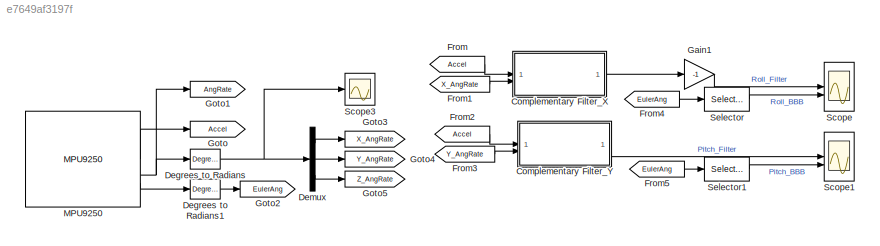
MODEL slx_e7649af3197f
KIND model
CONFIG AbsTol = auto
CONFIG EnableMultiTasking = on
CONFIG FixedStep = auto
CONFIG InitFcn = %Define the sampling time\nTs=0.003; %0.001\nTs2 = Ts;\nTs_IMU = Ts;\n\n%% Low pass filter\n%Filter coefficient (for the averaging)\n%The averaging window is around 5*tau\nT=0.1; %0.1\n\n%The constant alpha is used just to avoid more calculations\nalpha = (T/Ts)/(1+T/Ts);
CONFIG MaxStep = auto
CONFIG MinStep = auto
CONFIG RelTol = 1e-3
CONFIG SampleTimeConstraint = Unconstrained
CONFIG SolverName = FixedStepAuto
CONFIG StartTime = 0.0
CONFIG StopTime = inf
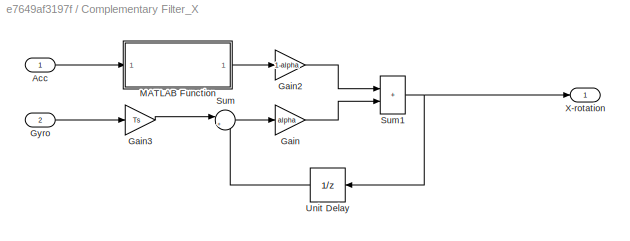
BLOCK [SubSystem] Complementary Filter_X
BLOCK [Inport] Complementary Filter_X/Acc
BLOCK [Gain] Complementary Filter_X/Gain
  Gain = alpha
BLOCK [Gain] Complementary Filter_X/Gain2
  Gain = 1-alpha
BLOCK [Gain] Complementary Filter_X/Gain3
  Gain = Ts
BLOCK [Inport] Complementary Filter_X/Gyro
  Port = 2
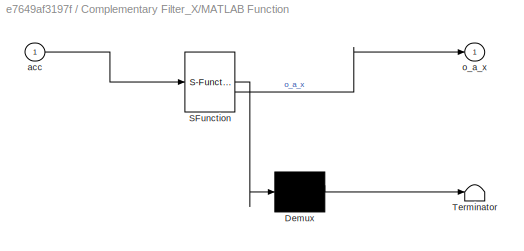
BLOCK [SubSystem] Complementary Filter_X/MATLAB Function
  ErrorFcn = Stateflow.Translate.translate
  PermitHierarchicalResolution = ExplicitOnly
  SFBlockType = MATLAB Function
  TreatAsAtomicUnit = on
BLOCK [Demux] Complementary Filter_X/MATLAB Function/ Demux 
  Outputs = 1
BLOCK [S-Function] Complementary Filter_X/MATLAB Function/ SFunction 
  EnableBusSupport = on
  FunctionName = sf_sfun
  PortCounts = [1 2]
  SFcnIsStateOwnerBlock = off
  SFunctionDeploymentMode = off
  Tag = Stateflow S-Function 2
BLOCK [Terminator] Complementary Filter_X/MATLAB Function/ Terminator 
BLOCK [Inport] Complementary Filter_X/MATLAB Function/acc
BLOCK [Outport] Complementary Filter_X/MATLAB Function/o_a_x
BLOCK [Sum] Complementary Filter_X/Sum
  Inputs = |++
BLOCK [Sum] Complementary Filter_X/Sum1
  IconShape = rectangular
BLOCK [UnitDelay] Complementary Filter_X/Unit Delay
  HasFrameUpgradeWarning = on
  NameLocation = top
  SampleTime = -1
BLOCK [Outport] Complementary Filter_X/X-rotation
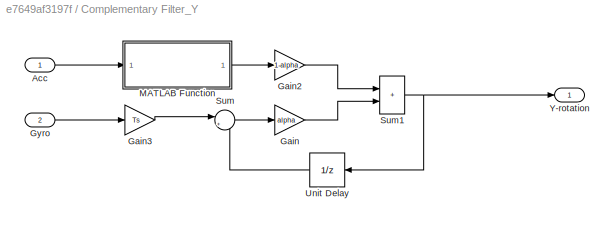
BLOCK [SubSystem] Complementary Filter_Y
BLOCK [Inport] Complementary Filter_Y/Acc
BLOCK [Gain] Complementary Filter_Y/Gain
  Gain = alpha
BLOCK [Gain] Complementary Filter_Y/Gain2
  Gain = 1-alpha
BLOCK [Gain] Complementary Filter_Y/Gain3
  Gain = Ts
BLOCK [Inport] Complementary Filter_Y/Gyro
  Port = 2
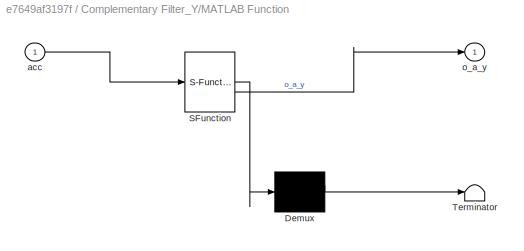
BLOCK [SubSystem] Complementary Filter_Y/MATLAB Function
  ErrorFcn = Stateflow.Translate.translate
  PermitHierarchicalResolution = ExplicitOnly
  SFBlockType = MATLAB Function
  TreatAsAtomicUnit = on
BLOCK [Demux] Complementary Filter_Y/MATLAB Function/ Demux 
  Outputs = 1
BLOCK [S-Function] Complementary Filter_Y/MATLAB Function/ SFunction 
  EnableBusSupport = on
  FunctionName = sf_sfun
  PortCounts = [1 2]
  SFcnIsStateOwnerBlock = off
  SFunctionDeploymentMode = off
  Tag = Stateflow S-Function 3
BLOCK [Terminator] Complementary Filter_Y/MATLAB Function/ Terminator 
BLOCK [Inport] Complementary Filter_Y/MATLAB Function/acc
BLOCK [Outport] Complementary Filter_Y/MATLAB Function/o_a_y
BLOCK [Sum] Complementary Filter_Y/Sum
  Inputs = |++
BLOCK [Sum] Complementary Filter_Y/Sum1
  IconShape = rectangular
BLOCK [UnitDelay] Complementary Filter_Y/Unit Delay
  HasFrameUpgradeWarning = on
  NameLocation = top
  SampleTime = -1
BLOCK [Outport] Complementary Filter_Y/Y-rotation
BLOCK [Reference] Degrees to Radians  REF=simulink_extras/Transformations/Degrees to
Radians
  SourceBlock = simulink_extras/Transformations/Degrees to\nRadians
  SourceType = DegreesToRadians
BLOCK [Reference] Degrees to Radians1  REF=simulink_extras/Transformations/Degrees to
Radians
  SourceBlock = simulink_extras/Transformations/Degrees to\nRadians
  SourceType = DegreesToRadians
BLOCK [Demux] Demux
  Outputs = 3
BLOCK [From] From
  GotoTag = Accel
  TagVisibility = global
BLOCK [From] From1
  GotoTag = X_AngRate
  TagVisibility = global
BLOCK [From] From2
  GotoTag = Accel
  TagVisibility = global
BLOCK [From] From3
  GotoTag = Y_AngRate
  TagVisibility = global
BLOCK [From] From4
  GotoTag = EulerAng
  TagVisibility = global
BLOCK [From] From5
  GotoTag = EulerAng
  TagVisibility = global
BLOCK [Gain] Gain1
  Gain = -1
BLOCK [Goto] Goto
  GotoTag = Accel
  TagVisibility = global
BLOCK [Goto] Goto1
  GotoTag = AngRate
BLOCK [Goto] Goto2
  GotoTag = EulerAng
  TagVisibility = global
BLOCK [Goto] Goto3
  GotoTag = X_AngRate
  TagVisibility = global
BLOCK [Goto] Goto4
  GotoTag = Y_AngRate
  TagVisibility = global
BLOCK [Goto] Goto5
  GotoTag = Z_AngRate
  TagVisibility = global
BLOCK [Reference] MPU9250  REF=bbblueSensorLib/MPU9250
  SourceBlock = bbblueSensorLib/MPU9250
  SourceType = beagleboneblue.bbblueMPU9250
BLOCK [Scope] Scope
  Floating = off
  NumInputPorts = 2
  ScopeSpecificationString = Simulink.scopes.TimeScopeBlockCfg('CurrentConfiguration', extmgr.ConfigurationSet(extmgr.Configuration('Core','General UI',true),extmgr.Configuration('Core','Source UI',true),extmgr.Configuration('Sources','WiredSimulink',true),extmgr.Configuration('Visuals','Time Domain',true,'SerializedDisplays',{struct('MinYLimReal','-0.42274','MaxYLimReal','0.28983','YLabelReal','','MinYLimMag','0.00000','MaxY...<+1511ch>
BLOCK [Scope] Scope1
  Floating = off
  NumInputPorts = 2
  ScopeSpecificationString = Simulink.scopes.TimeScopeBlockCfg('CurrentConfiguration', extmgr.ConfigurationSet(extmgr.Configuration('Core','General UI',true),extmgr.Configuration('Core','Source UI',true),extmgr.Configuration('Sources','WiredSimulink',true,'DataLoggingVariableName','ScopeData1'),extmgr.Configuration('Visuals','Time Domain',true,'SerializedDisplays',{struct('MinYLimReal','-1.35091','MaxYLimReal','1.63429','YLab...<+1552ch>
BLOCK [Scope] Scope3
  Floating = off
  NumInputPorts = 1
  ScopeSpecificationString = Simulink.scopes.TimeScopeBlockCfg('CurrentConfiguration', extmgr.ConfigurationSet(extmgr.Configuration('Core','General UI',true),extmgr.Configuration('Core','Source UI',true),extmgr.Configuration('Sources','WiredSimulink',true,'DataLoggingVariableName','ScopeData1'),extmgr.Configuration('Visuals','Time Domain',true),extmgr.Configuration('Tools','Plot Navigation',true),extmgr.Configuration('Tools',...<+40ch>
BLOCK [Selector] Selector
  IndexOptions = Index vector (dialog)
  Indices = [2]
  InputPortWidth = 3
  OutputSizes = 1
BLOCK [Selector] Selector1
  IndexOptions = Index vector (dialog)
  Indices = [1]
  InputPortWidth = 3
  OutputSizes = 1
LINE Complementary Filter_X/Acc:1 -> Complementary Filter_X/MATLAB Function:1
LINE Complementary Filter_X/Gain2:1 -> Complementary Filter_X/Sum1:1
LINE Complementary Filter_X/Gain3:1 -> Complementary Filter_X/Sum:1
LINE Complementary Filter_X/Gain:1 -> Complementary Filter_X/Sum1:2
LINE Complementary Filter_X/Gyro:1 -> Complementary Filter_X/Gain3:1
LINE Complementary Filter_X/MATLAB Function:1 -> Complementary Filter_X/Gain2:1
NET Complementary Filter_X/Sum1:1 -> Complementary Filter_X/Unit Delay:1, Complementary Filter_X/X-rotation:1
LINE Complementary Filter_X/Sum:1 -> Complementary Filter_X/Gain:1
LINE Complementary Filter_X/Unit Delay:1 -> Complementary Filter_X/Sum:2
LINE Complementary Filter_X:1 -> Gain1:1
LINE Complementary Filter_Y/Acc:1 -> Complementary Filter_Y/MATLAB Function:1
LINE Complementary Filter_Y/Gain2:1 -> Complementary Filter_Y/Sum1:1
LINE Complementary Filter_Y/Gain3:1 -> Complementary Filter_Y/Sum:1
LINE Complementary Filter_Y/Gain:1 -> Complementary Filter_Y/Sum1:2
LINE Complementary Filter_Y/Gyro:1 -> Complementary Filter_Y/Gain3:1
LINE Complementary Filter_Y/MATLAB Function:1 -> Complementary Filter_Y/Gain2:1
NET Complementary Filter_Y/Sum1:1 -> Complementary Filter_Y/Unit Delay:1, Complementary Filter_Y/Y-rotation:1
LINE Complementary Filter_Y/Sum:1 -> Complementary Filter_Y/Gain:1
LINE Complementary Filter_Y/Unit Delay:1 -> Complementary Filter_Y/Sum:2
LINE Complementary Filter_Y:1 -> Scope1:1
LINE Degrees to Radians1:1 -> Goto2:1
NET Degrees to Radians:1 -> Demux:1, Scope3:1
LINE Demux:1 -> Goto3:1
LINE Demux:2 -> Goto4:1
LINE Demux:3 -> Goto5:1
LINE From1:1 -> Complementary Filter_X:2
LINE From2:1 -> Complementary Filter_Y:1
LINE From3:1 -> Complementary Filter_Y:2
LINE From4:1 -> Selector:1
LINE From5:1 -> Selector1:1
LINE From:1 -> Complementary Filter_X:1
LINE Gain1:1 -> Scope:1
LINE MPU9250:1 -> Goto:1
NET MPU9250:2 -> Degrees to Radians:1, Goto1:1
LINE MPU9250:3 -> Degrees to Radians1:1
LINE Selector1:1 -> Scope1:2
LINE Selector:1 -> Scope:2
note: NET lines group one-source signal fan-out (src -> all destinations, sorted); 1:1 wires keep LINE
CHART Complementary Filter_X/MATLAB Function states=1 transitions=1
  STATE_LABEL 'eML_blk_kernel()'
  STATE_LABEL 'SCRIPT:\nfunction o_a_x = fcn(acc)\n\nacc_x = acc(1);\nacc_z = acc(3);\n\no_a_x = atan(acc_x/acc_z);\n\nend'
CHART Complementary Filter_Y/MATLAB Function states=1 transitions=1
  STATE_LABEL 'eML_blk_kernel()'
  STATE_LABEL 'SCRIPT:\nfunction o_a_y = fcn(acc)\n\nacc_y = acc(2);\nacc_z = acc(3);\n\no_a_y = atan(acc_y/acc_z);\n\nend'
CHART  states=0 transitions=0
CHART  states=0 transitions=0
